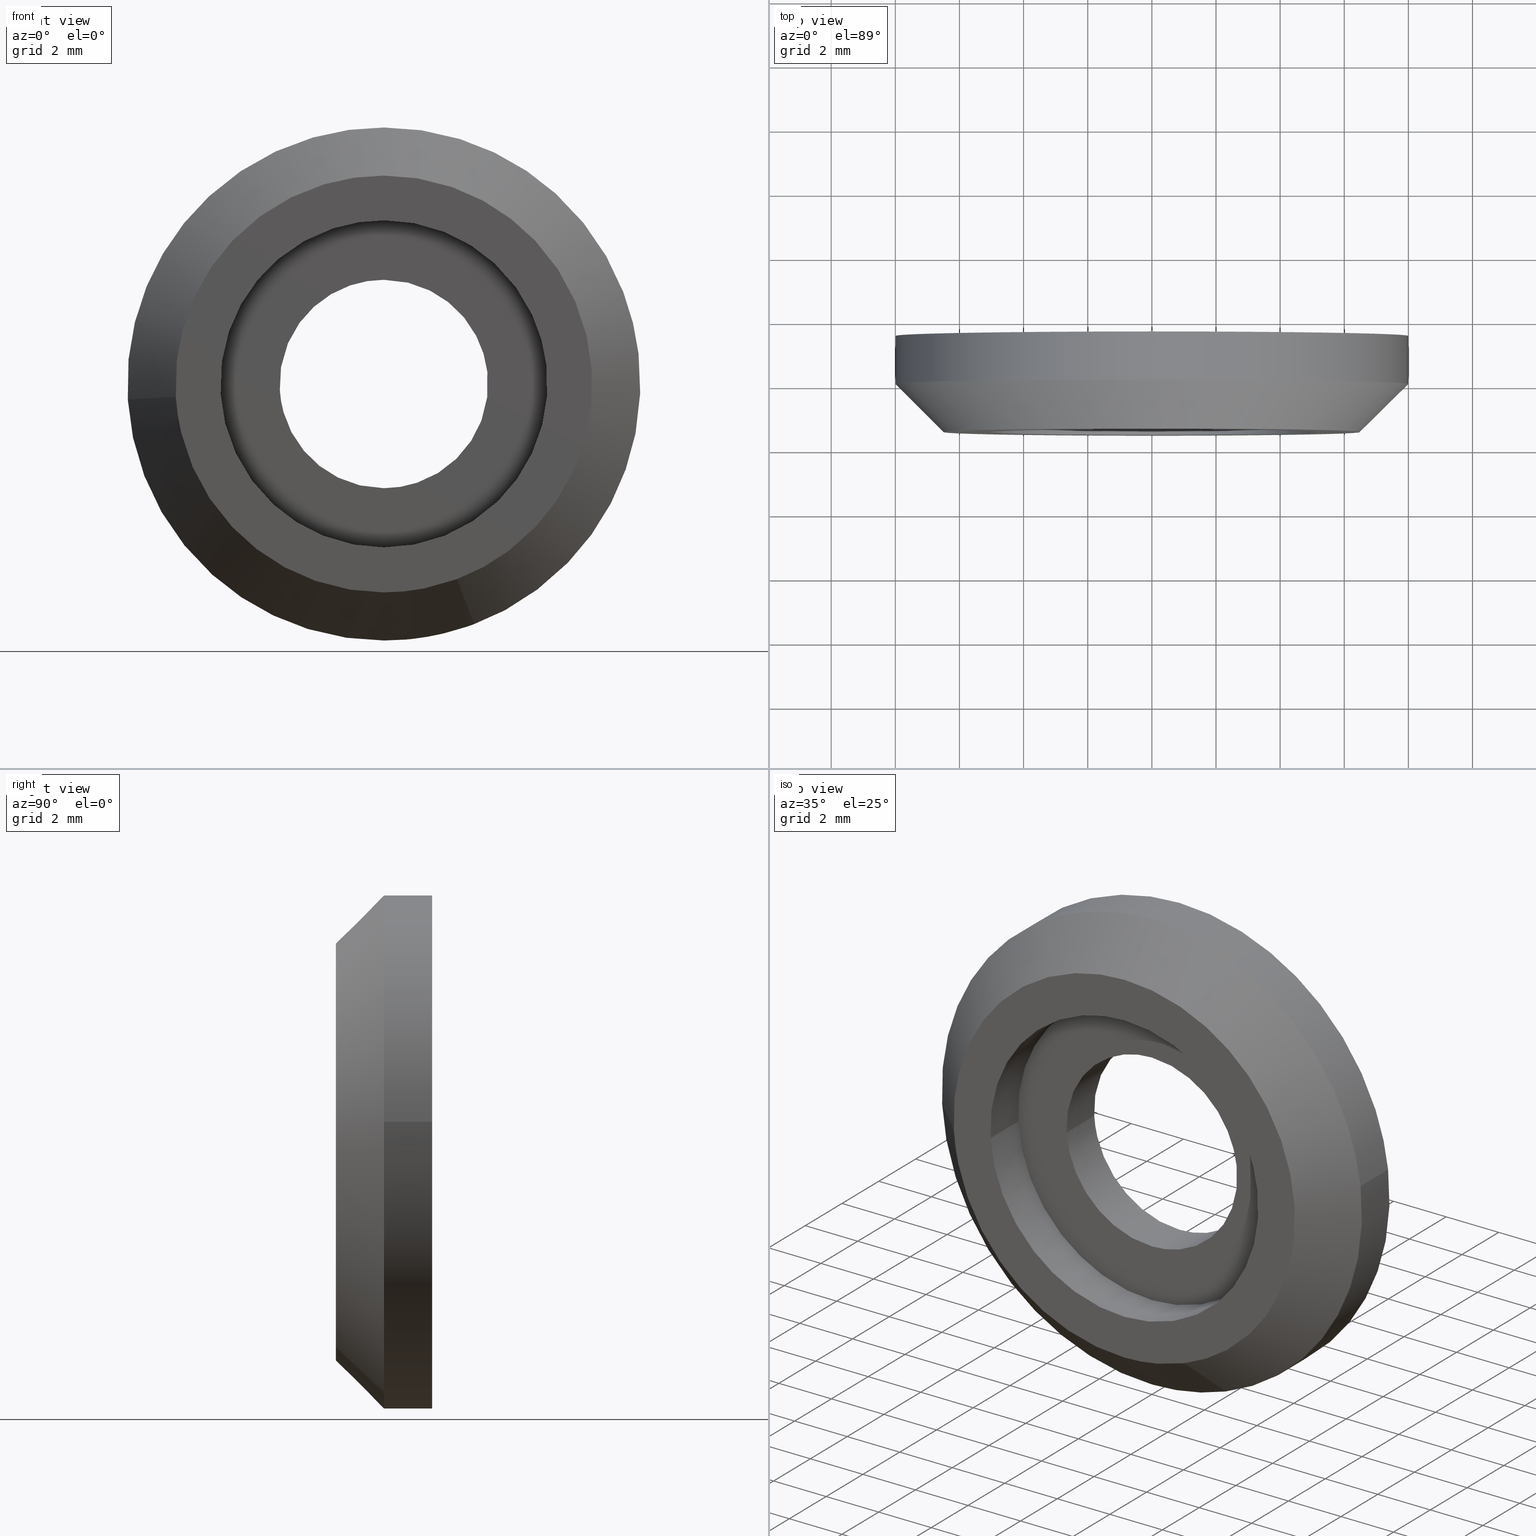
[diagram: canonical four-view strip — front | top / right | iso, engineering-drawing reading convention]
A machine part, canonical four-view strip (front | top / right | iso — engineering-drawing reading convention). The complete STEP part file that produces these views, byte-faithful:
ISO-10303-21;
HEADER;
/****************************************************************
 * Generated by software with PDE/Lib inside                    *
 * PDElib Version 4.4.1-0003, patched  Thursday August 19 11:58 *
 * International Technegroup Inc. (www.iti-oh.com)              *
 ****************************************************************/
FILE_DESCRIPTION((''),'2;1');
FILE_NAME('','2005-10-12T14:41:55',(''),(''),'','CADfix','');
FILE_SCHEMA(('AUTOMOTIVE_DESIGN'));
ENDSEC;
DATA;
#5=APPLICATION_CONTEXT('automotive design');
#6=APPLICATION_PROTOCOL_DEFINITION('Draft International Standard','automotive_design',1998,#5);
#7=PRODUCT_CONTEXT('None',#5,'mechanical');
#8=PRODUCT('facing ring','','None',(#7));
#9=PRODUCT_RELATED_PRODUCT_CATEGORY('part','description',(#8));
#10=PRODUCT_DEFINITION_FORMATION('None','None',#8);
#11=PRODUCT_DEFINITION_CONTEXT('part definition',#5,'design');
#12=PRODUCT_DEFINITION('None','None',#10,#11);
#18=(NAMED_UNIT(*)PLANE_ANGLE_UNIT()SI_UNIT($,.RADIAN.));
#19=DIMENSIONAL_EXPONENTS(0.0,0.0,0.0,0.0,0.0,0.0,0.0);
#20=PLANE_ANGLE_MEASURE_WITH_UNIT(PLANE_ANGLE_MEASURE(0.017453292500000),#18);
#24=(CONVERSION_BASED_UNIT('DEGREE',#20)NAMED_UNIT(#19)PLANE_ANGLE_UNIT());
#28=(NAMED_UNIT(*)SI_UNIT($,.STERADIAN.)SOLID_ANGLE_UNIT());
#32=(LENGTH_UNIT()NAMED_UNIT(*)SI_UNIT(.MILLI.,.METRE.));
#34=UNCERTAINTY_MEASURE_WITH_UNIT(LENGTH_MEASURE(0.001000000000000),#32,'DISTANCE_ACCURACY_VALUE','');
#36=(GEOMETRIC_REPRESENTATION_CONTEXT(3)GLOBAL_UNCERTAINTY_ASSIGNED_CONTEXT((#34))GLOBAL_UNIT_ASSIGNED_CONTEXT((#24,#28,#32))REPRESENTATION_CONTEXT('None','None'));
#37=AXIS2_PLACEMENT_3D('',#38,#39,#40);
#38=CARTESIAN_POINT('',(0.0,0.0,0.0));
#39=DIRECTION('',(0.0,0.0,1.0));
#40=DIRECTION('',(1.0,0.0,0.0));
#41=ADVANCED_BREP_SHAPE_REPRESENTATION('',(#37,#799),#36);
#42=PRODUCT_DEFINITION_SHAPE('','',#12);
#43=SHAPE_DEFINITION_REPRESENTATION(#42,#41);
#44=CARTESIAN_POINT('',(2.272331159505534,-1.537500000000001,-6.049827877844145));
#45=CARTESIAN_POINT('',(1.363519331710825,-1.537500000000001,-6.391179975147284));
#46=CARTESIAN_POINT('',(0.394526186744013,-1.537500000000000,-6.450446134801312));
#47=CARTESIAN_POINT('',(-6.055919948057299,-1.537500000000000,-6.844972321545325));
#48=CARTESIAN_POINT('',(-6.450446134801312,-1.537500000000000,-0.394526186744013));
#49=CARTESIAN_POINT('',(2.826459111023253,0.038437500000000,-7.525131649022485));
#50=CARTESIAN_POINT('',(1.696025520773577,0.038437500000000,-7.949725459415552));
#51=CARTESIAN_POINT('',(0.490734869517227,0.038437500000000,-8.023444193689274));
#52=CARTESIAN_POINT('',(-7.532709324172047,0.038437500000000,-8.514179063206502));
#53=CARTESIAN_POINT('',(-8.023444193689274,0.038437500000000,-0.490734869517227));
#61=(BOUNDED_SURFACE()B_SPLINE_SURFACE(2,1,((#44,#49),(#45,#50),(#46,#51),(#47,#52),(#48,#53)),.UNSPECIFIED.,.F.,.F.,.U.)B_SPLINE_SURFACE_WITH_KNOTS((3,2,3),(2,2),(0.0,2.663703866230780,15.982223197384680),(0.0,2.228712185952351),.UNSPECIFIED.)GEOMETRIC_REPRESENTATION_ITEM()RATIONAL_B_SPLINE_SURFACE(((0.906274169979695,0.906274169979695),(0.941421356237309,0.941421356237309),(1.0,1.0),(0.707106781186548,0.707106781186548),(1.0,1.0)))REPRESENTATION_ITEM('')SURFACE());
#62=CARTESIAN_POINT('',(2.812943795141329,8.550710E-013,-7.489148630210885));
#63=VERTEX_POINT('',#62);
#64=CARTESIAN_POINT('',(0.0,0.0,-8.0));
#65=VERTEX_POINT('',#64);
#66=CARTESIAN_POINT('',(2.812943795141329,8.550710E-013,-7.489148630210886));
#67=CARTESIAN_POINT('',(1.452859088543410,0.0,-8.0));
#68=CARTESIAN_POINT('',(0.0,0.0,-8.0));
#76=(BOUNDED_CURVE()B_SPLINE_CURVE(2,(#66,#67,#68),.UNSPECIFIED.,.F.,.U.)B_SPLINE_CURVE_WITH_KNOTS((3,3),(0.440284170898553,0.500000000000000),.UNSPECIFIED.)CURVE()GEOMETRIC_REPRESENTATION_ITEM()RATIONAL_B_SPLINE_CURVE((0.893499554635329,0.930038554401453,1.0))REPRESENTATION_ITEM(''));
#77=EDGE_CURVE('',#63,#65,#76,.T.);
#78=ORIENTED_EDGE('',*,*,#77,.F.);
#79=CARTESIAN_POINT('',(2.285516833554305,-1.499999999999113,-6.084933262045807));
#80=VERTEX_POINT('',#79);
#81=CARTESIAN_POINT('',(2.285516833554305,-1.499999999999113,-6.084933262045807));
#82=CARTESIAN_POINT('',(2.812943795141329,8.550710E-013,-7.489148630210885));
#83=QUASI_UNIFORM_CURVE('',1,(#81,#82),.UNSPECIFIED.,.F.,.U.);
#84=EDGE_CURVE('',#80,#63,#83,.T.);
#85=ORIENTED_EDGE('',*,*,#84,.F.);
#86=CARTESIAN_POINT('',(0.0,-1.500000000000000,-6.500000000000000));
#87=VERTEX_POINT('',#86);
#88=CARTESIAN_POINT('',(2.285516833554305,-1.499999999999113,-6.084933262045807));
#89=CARTESIAN_POINT('',(1.180448009443627,-1.500000000000000,-6.500000000000000));
#90=CARTESIAN_POINT('',(0.0,-1.500000000000000,-6.500000000000000));
#98=(BOUNDED_CURVE()B_SPLINE_CURVE(2,(#88,#89,#90),.UNSPECIFIED.,.F.,.U.)B_SPLINE_CURVE_WITH_KNOTS((3,3),(0.440284170898454,0.500000000000000),.UNSPECIFIED.)CURVE()GEOMETRIC_REPRESENTATION_ITEM()RATIONAL_B_SPLINE_CURVE((0.893499554635208,0.930038554401337,1.0))REPRESENTATION_ITEM(''));
#99=EDGE_CURVE('',#80,#87,#98,.T.);
#100=ORIENTED_EDGE('',*,*,#99,.T.);
#101=CARTESIAN_POINT('',(-6.487876189742202,-1.499999999999874,-0.396815506977523));
#102=VERTEX_POINT('',#101);
#103=CARTESIAN_POINT('',(0.0,-1.500000000000000,-6.500000000000000));
#104=CARTESIAN_POINT('',(-6.114589434885240,-1.500000000000001,-6.500000000000001));
#105=CARTESIAN_POINT('',(-6.487876189742202,-1.499999999999874,-0.396815506977523));
#113=(BOUNDED_CURVE()B_SPLINE_CURVE(2,(#103,#104,#105),.UNSPECIFIED.,.F.,.U.)B_SPLINE_CURVE_WITH_KNOTS((3,3),(0.500000000000000,0.739332962241918),.UNSPECIFIED.)CURVE()GEOMETRIC_REPRESENTATION_ITEM()RATIONAL_B_SPLINE_CURVE((1.0,0.719603993283224,0.976072041673094))REPRESENTATION_ITEM(''));
#114=EDGE_CURVE('',#87,#102,#113,.T.);
#115=ORIENTED_EDGE('',*,*,#114,.T.);
#116=CARTESIAN_POINT('',(-7.985078472751683,-1.985229E-009,-0.488386887853882));
#117=VERTEX_POINT('',#116);
#118=CARTESIAN_POINT('',(-6.487876189742202,-1.499999999999874,-0.396815506977523));
#119=CARTESIAN_POINT('',(-7.985078472751683,-1.985229E-009,-0.488386887853882));
#120=QUASI_UNIFORM_CURVE('',1,(#118,#119),.UNSPECIFIED.,.F.,.U.);
#121=EDGE_CURVE('',#102,#117,#120,.T.);
#122=ORIENTED_EDGE('',*,*,#121,.T.);
#123=CARTESIAN_POINT('',(0.0,0.0,-8.0));
#124=CARTESIAN_POINT('',(-7.525649883885951,0.0,-8.0));
#125=CARTESIAN_POINT('',(-7.985078472751683,-1.985229E-009,-0.488386887853882));
#133=(BOUNDED_CURVE()B_SPLINE_CURVE(2,(#123,#124,#125),.UNSPECIFIED.,.F.,.U.)B_SPLINE_CURVE_WITH_KNOTS((3,3),(0.500000000000000,0.739332993105690),.UNSPECIFIED.)CURVE()GEOMETRIC_REPRESENTATION_ITEM()RATIONAL_B_SPLINE_CURVE((1.0,0.719603957124067,0.976072107820041))REPRESENTATION_ITEM(''));
#134=EDGE_CURVE('',#65,#117,#133,.T.);
#135=ORIENTED_EDGE('',*,*,#134,.F.);
#136=EDGE_LOOP('',(#78,#85,#100,#115,#122,#135));
#137=FACE_OUTER_BOUND('',#136,.T.);
#138=ADVANCED_FACE('',(#137),#61,.T.);
#139=CARTESIAN_POINT('',(-6.450446134801312,-1.537500000000000,-0.394526186744013));
#140=CARTESIAN_POINT('',(-6.844972321545325,-1.537500000000000,6.055919948057299));
#141=CARTESIAN_POINT('',(-0.394526186744013,-1.537500000000000,6.450446134801312));
#142=CARTESIAN_POINT('',(6.055919948057299,-1.537500000000000,6.844972321545325));
#143=CARTESIAN_POINT('',(6.450446134801312,-1.537500000000000,0.394526186744013));
#144=CARTESIAN_POINT('',(6.741920552793120,-1.537500000000001,-4.371038422402307));
#145=CARTESIAN_POINT('',(2.272331159505534,-1.537500000000001,-6.049827877844145));
#146=CARTESIAN_POINT('',(-8.023444193689274,0.038437500000000,-0.490734869517227));
#147=CARTESIAN_POINT('',(-8.514179063206502,0.038437500000000,7.532709324172047));
#148=CARTESIAN_POINT('',(-0.490734869517227,0.038437500000000,8.023444193689274));
#149=CARTESIAN_POINT('',(7.532709324172047,0.038437500000000,8.514179063206502));
#150=CARTESIAN_POINT('',(8.023444193689274,0.038437500000000,0.490734869517227));
#151=CARTESIAN_POINT('',(8.385997213708775,0.038437500000000,-5.436954610225077));
#152=CARTESIAN_POINT('',(2.826459111023253,0.038437500000000,-7.525131649022485));
#160=(BOUNDED_SURFACE()B_SPLINE_SURFACE(2,1,((#139,#146),(#140,#147),(#141,#148),(#142,#149),(#143,#150),(#144,#151),(#145,#152)),.UNSPECIFIED.,.F.,.F.,.U.)B_SPLINE_SURFACE_WITH_KNOTS((3,2,2,3),(2,2),(0.0,13.318519331153899,26.637038662307809,37.291854127230927),(0.0,2.228712185952351),.UNSPECIFIED.)GEOMETRIC_REPRESENTATION_ITEM()RATIONAL_B_SPLINE_SURFACE(((1.0,1.0),(0.707106781186548,0.707106781186548),(1.0,1.0),(0.707106781186548,0.707106781186548),(1.0,1.0),(0.765685424949238,0.765685424949238),(0.906274169979695,0.906274169979695)))REPRESENTATION_ITEM('')SURFACE());
#161=CARTESIAN_POINT('',(7.944076812039399,4.167216E-014,0.944268819982941));
#162=VERTEX_POINT('',#161);
#163=CARTESIAN_POINT('',(7.944076812039400,4.167216E-014,0.944268819982941));
#164=CARTESIAN_POINT('',(8.0,0.0,0.473790401847546));
#165=CARTESIAN_POINT('',(8.0,0.0,0.0));
#166=CARTESIAN_POINT('',(8.0,0.0,-5.540876765541983));
#167=CARTESIAN_POINT('',(2.812943795141329,8.550710E-013,-7.489148630210885));
#175=(BOUNDED_CURVE()B_SPLINE_CURVE(2,(#163,#164,#165,#166,#167),.UNSPECIFIED.,.F.,.U.)B_SPLINE_CURVE_WITH_KNOTS((3,2,3),(0.229562581104653,0.250000000000000,0.440284170898552),.UNSPECIFIED.)CURVE()GEOMETRIC_REPRESENTATION_ITEM()RATIONAL_B_SPLINE_CURVE((0.956026965066855,0.976056074382012,1.0,0.777068226785096,0.893499554635329))REPRESENTATION_ITEM(''));
#176=EDGE_CURVE('',#162,#63,#175,.T.);
#177=ORIENTED_EDGE('',*,*,#176,.F.);
#178=CARTESIAN_POINT('',(0.0,0.0,8.0));
#179=VERTEX_POINT('',#178);
#180=CARTESIAN_POINT('',(0.0,0.0,8.0));
#181=CARTESIAN_POINT('',(7.105400762814723,0.0,8.000000000000002));
#182=CARTESIAN_POINT('',(7.944076812039400,4.167216E-014,0.944268819982941));
#190=(BOUNDED_CURVE()B_SPLINE_CURVE(2,(#180,#181,#182),.UNSPECIFIED.,.F.,.U.)B_SPLINE_CURVE_WITH_KNOTS((3,3),(0.0,0.229562581104653),.UNSPECIFIED.)CURVE()GEOMETRIC_REPRESENTATION_ITEM()RATIONAL_B_SPLINE_CURVE((1.0,0.731050706804535,0.956026965066855))REPRESENTATION_ITEM(''));
#191=EDGE_CURVE('',#179,#162,#190,.T.);
#192=ORIENTED_EDGE('',*,*,#191,.F.);
#193=CARTESIAN_POINT('',(-7.985078472751683,-1.985229E-009,-0.488386887853882));
#194=CARTESIAN_POINT('',(-8.000000000000002,0.0,-0.244421390234428));
#195=CARTESIAN_POINT('',(-8.0,0.0,0.0));
#196=CARTESIAN_POINT('',(-8.0,0.0,8.0));
#197=CARTESIAN_POINT('',(0.0,0.0,8.0));
#205=(BOUNDED_CURVE()B_SPLINE_CURVE(2,(#193,#194,#195,#196,#197),.UNSPECIFIED.,.F.,.U.)B_SPLINE_CURVE_WITH_KNOTS((3,2,3),(0.739332993105690,0.750000000000000,1.0),.UNSPECIFIED.)CURVE()GEOMETRIC_REPRESENTATION_ITEM()RATIONAL_B_SPLINE_CURVE((0.976072107820041,0.987502824062481,1.0,0.707106781186548,1.0))REPRESENTATION_ITEM(''));
#206=EDGE_CURVE('',#117,#179,#205,.T.);
#207=ORIENTED_EDGE('',*,*,#206,.F.);
#208=ORIENTED_EDGE('',*,*,#121,.F.);
#209=CARTESIAN_POINT('',(0.0,-1.500000000000000,6.500000000000000));
#210=VERTEX_POINT('',#209);
#211=CARTESIAN_POINT('',(-6.487876189742202,-1.499999999999874,-0.396815506977523));
#212=CARTESIAN_POINT('',(-6.500000000000001,-1.500000000000001,-0.198592961441776));
#213=CARTESIAN_POINT('',(-6.500000000000000,-1.500000000000000,0.0));
#214=CARTESIAN_POINT('',(-6.500000000000000,-1.500000000000000,6.500000000000000));
#215=CARTESIAN_POINT('',(0.0,-1.500000000000000,6.500000000000000));
#223=(BOUNDED_CURVE()B_SPLINE_CURVE(2,(#211,#212,#213,#214,#215),.UNSPECIFIED.,.F.,.U.)B_SPLINE_CURVE_WITH_KNOTS((3,2,3),(0.739332962241918,0.750000000000000,1.0),.UNSPECIFIED.)CURVE()GEOMETRIC_REPRESENTATION_ITEM()RATIONAL_B_SPLINE_CURVE((0.976072041673094,0.987502787903323,1.0,0.707106781186547,1.0))REPRESENTATION_ITEM(''));
#224=EDGE_CURVE('',#102,#210,#223,.T.);
#225=ORIENTED_EDGE('',*,*,#224,.T.);
#226=CARTESIAN_POINT('',(0.0,-1.500000000000000,6.500000000000000));
#227=CARTESIAN_POINT('',(6.500000000000000,-1.500000000000000,6.500000000000000));
#228=CARTESIAN_POINT('',(6.500000000000000,-1.500000000000000,0.0));
#229=CARTESIAN_POINT('',(6.500000000000000,-1.499999999999999,-4.501962371999858));
#230=CARTESIAN_POINT('',(2.285516833554305,-1.499999999999113,-6.084933262045807));
#238=(BOUNDED_CURVE()B_SPLINE_CURVE(2,(#226,#227,#228,#229,#230),.UNSPECIFIED.,.F.,.U.)B_SPLINE_CURVE_WITH_KNOTS((3,2,3),(0.0,0.250000000000000,0.440284170898454),.UNSPECIFIED.)CURVE()GEOMETRIC_REPRESENTATION_ITEM()RATIONAL_B_SPLINE_CURVE((1.0,0.707106781186547,1.0,0.777068226785211,0.893499554635208))REPRESENTATION_ITEM(''));
#239=EDGE_CURVE('',#210,#80,#238,.T.);
#240=ORIENTED_EDGE('',*,*,#239,.T.);
#241=ORIENTED_EDGE('',*,*,#84,.T.);
#242=EDGE_LOOP('',(#177,#192,#207,#208,#225,#240,#241));
#243=FACE_OUTER_BOUND('',#242,.T.);
#244=ADVANCED_FACE('',(#243),#160,.T.);
#245=CARTESIAN_POINT('',(7.944076210909330,-0.037500000000000,0.944273877254068));
#246=CARTESIAN_POINT('',(7.971100923588844,-0.037500000000000,0.716917829103821));
#247=CARTESIAN_POINT('',(7.985078387374934,-0.037500000000000,0.488388316278856));
#248=CARTESIAN_POINT('',(8.473466703653790,-0.037500000000000,-7.496690071096078));
#249=CARTESIAN_POINT('',(0.488388316278856,-0.037500000000000,-7.985078387374934));
#250=CARTESIAN_POINT('',(-7.496690071096078,-0.037500000000000,-8.473466703653790));
#251=CARTESIAN_POINT('',(-7.985078387374934,-0.037500000000000,-0.488388316278856));
#252=CARTESIAN_POINT('',(7.944076210909330,1.538437500000000,0.944273877254068));
#253=CARTESIAN_POINT('',(7.971100923588844,1.538437500000001,0.716917829103821));
#254=CARTESIAN_POINT('',(7.985078387374934,1.538437500000000,0.488388316278856));
#255=CARTESIAN_POINT('',(8.473466703653790,1.538437500000001,-7.496690071096078));
#256=CARTESIAN_POINT('',(0.488388316278856,1.538437500000000,-7.985078387374934));
#257=CARTESIAN_POINT('',(-7.496690071096078,1.538437500000001,-8.473466703653790));
#258=CARTESIAN_POINT('',(-7.985078387374934,1.538437500000000,-0.488388316278856));
#266=(BOUNDED_SURFACE()B_SPLINE_SURFACE(2,1,((#245,#252),(#246,#253),(#247,#254),(#248,#255),(#249,#256),(#250,#257),(#251,#258)),.UNSPECIFIED.,.F.,.F.,.U.)B_SPLINE_SURFACE_WITH_KNOTS((3,2,2,3),(2,2),(0.0,0.530193359837562,13.785027355776601,27.039861351715629),(0.0,1.0),.UNSPECIFIED.)GEOMETRIC_REPRESENTATION_ITEM()RATIONAL_B_SPLINE_SURFACE(((0.977505800795127,0.977505800795127),(0.988284271247462,0.988284271247462),(1.0,1.0),(0.707106781186548,0.707106781186548),(1.0,1.0),(0.707106781186548,0.707106781186548),(1.0,1.0)))REPRESENTATION_ITEM('')SURFACE());
#267=ORIENTED_EDGE('',*,*,#176,.T.);
#268=ORIENTED_EDGE('',*,*,#77,.T.);
#269=ORIENTED_EDGE('',*,*,#134,.T.);
#270=CARTESIAN_POINT('',(-7.985078559988073,1.500000000000000,-0.488385494062622));
#271=VERTEX_POINT('',#270);
#272=CARTESIAN_POINT('',(-7.985078472751683,-1.985229E-009,-0.488386887853882));
#273=CARTESIAN_POINT('',(-7.985078559988073,1.500000000000000,-0.488385494062622));
#274=QUASI_UNIFORM_CURVE('',1,(#272,#273),.UNSPECIFIED.,.F.,.U.);
#275=EDGE_CURVE('',#117,#271,#274,.T.);
#276=ORIENTED_EDGE('',*,*,#275,.T.);
#277=CARTESIAN_POINT('',(0.0,1.500000000000000,-8.0));
#278=VERTEX_POINT('',#277);
#279=CARTESIAN_POINT('',(0.0,1.500000000000000,-8.0));
#280=CARTESIAN_POINT('',(-7.525651200053410,1.500000000000001,-8.0));
#281=CARTESIAN_POINT('',(-7.985078559988073,1.500000000000000,-0.488385494062622));
#289=(BOUNDED_CURVE()B_SPLINE_CURVE(2,(#279,#280,#281),.UNSPECIFIED.,.F.,.U.)B_SPLINE_CURVE_WITH_KNOTS((3,3),(0.500000000000000,0.739333023226263),.UNSPECIFIED.)CURVE()GEOMETRIC_REPRESENTATION_ITEM()RATIONAL_B_SPLINE_CURVE((1.0,0.719603921835620,0.976072172374189))REPRESENTATION_ITEM(''));
#290=EDGE_CURVE('',#278,#271,#289,.T.);
#291=ORIENTED_EDGE('',*,*,#290,.F.);
#292=CARTESIAN_POINT('',(7.944076804799064,1.500000000000000,0.944268880895772));
#293=VERTEX_POINT('',#292);
#294=CARTESIAN_POINT('',(7.944076804799064,1.500000000000000,0.944268880895772));
#295=CARTESIAN_POINT('',(8.0,1.500000000000000,0.473790432625938));
#296=CARTESIAN_POINT('',(8.0,1.500000000000000,0.0));
#297=CARTESIAN_POINT('',(8.0,1.500000000000000,-8.0));
#298=CARTESIAN_POINT('',(0.0,1.500000000000000,-8.0));
#306=(BOUNDED_CURVE()B_SPLINE_CURVE(2,(#294,#295,#296,#297,#298),.UNSPECIFIED.,.F.,.U.)B_SPLINE_CURVE_WITH_KNOTS((3,2,3),(0.229562579808786,0.250000000000000,0.500000000000000),.UNSPECIFIED.)CURVE()GEOMETRIC_REPRESENTATION_ITEM()RATIONAL_B_SPLINE_CURVE((0.956026962526900,0.976056072863809,1.0,0.707106781186548,1.0))REPRESENTATION_ITEM(''));
#307=EDGE_CURVE('',#293,#278,#306,.T.);
#308=ORIENTED_EDGE('',*,*,#307,.F.);
#309=CARTESIAN_POINT('',(7.944076812039399,4.167216E-014,0.944268819982941));
#310=CARTESIAN_POINT('',(7.944076804799064,1.500000000000000,0.944268880895772));
#311=QUASI_UNIFORM_CURVE('',1,(#309,#310),.UNSPECIFIED.,.F.,.U.);
#312=EDGE_CURVE('',#162,#293,#311,.T.);
#313=ORIENTED_EDGE('',*,*,#312,.F.);
#314=EDGE_LOOP('',(#267,#268,#269,#276,#291,#308,#313));
#315=FACE_OUTER_BOUND('',#314,.T.);
#316=ADVANCED_FACE('',(#315),#266,.T.);
#317=CARTESIAN_POINT('',(-7.985078387374934,-0.037500000000000,-0.488388316278856));
#318=CARTESIAN_POINT('',(-8.473466703653790,-0.037500000000000,7.496690071096078));
#319=CARTESIAN_POINT('',(-0.488388316278856,-0.037500000000000,7.985078387374934));
#320=CARTESIAN_POINT('',(7.052347926716008,-0.037500000000000,8.446289573860220));
#321=CARTESIAN_POINT('',(7.944076210909330,-0.037500000000000,0.944273877254068));
#322=CARTESIAN_POINT('',(-7.985078387374934,1.538437500000000,-0.488388316278856));
#323=CARTESIAN_POINT('',(-8.473466703653790,1.538437500000001,7.496690071096078));
#324=CARTESIAN_POINT('',(-0.488388316278856,1.538437500000000,7.985078387374934));
#325=CARTESIAN_POINT('',(7.052347926716008,1.538437500000000,8.446289573860220));
#326=CARTESIAN_POINT('',(7.944076210909330,1.538437500000000,0.944273877254068));
#334=(BOUNDED_SURFACE()B_SPLINE_SURFACE(2,1,((#317,#322),(#318,#323),(#319,#324),(#320,#325),(#321,#326)),.UNSPECIFIED.,.F.,.F.,.U.)B_SPLINE_SURFACE_WITH_KNOTS((3,2,3),(2,2),(0.0,13.254833995939039,25.979474632040510),(0.0,1.0),.UNSPECIFIED.)GEOMETRIC_REPRESENTATION_ITEM()RATIONAL_B_SPLINE_SURFACE(((1.0,1.0),(0.707106781186548,0.707106781186548),(1.0,1.0),(0.718822509939086,0.718822509939086),(0.977505800795127,0.977505800795127)))REPRESENTATION_ITEM('')SURFACE());
#335=ORIENTED_EDGE('',*,*,#191,.T.);
#336=ORIENTED_EDGE('',*,*,#312,.T.);
#337=CARTESIAN_POINT('',(0.0,1.500000000000000,8.0));
#338=VERTEX_POINT('',#337);
#339=CARTESIAN_POINT('',(0.0,1.500000000000000,8.0));
#340=CARTESIAN_POINT('',(7.105400707949082,1.500000000000000,8.0));
#341=CARTESIAN_POINT('',(7.944076804799064,1.500000000000000,0.944268880895772));
#349=(BOUNDED_CURVE()B_SPLINE_CURVE(2,(#339,#340,#341),.UNSPECIFIED.,.F.,.U.)B_SPLINE_CURVE_WITH_KNOTS((3,3),(0.0,0.229562579808786),.UNSPECIFIED.)CURVE()GEOMETRIC_REPRESENTATION_ITEM()RATIONAL_B_SPLINE_CURVE((1.0,0.731050708322738,0.956026962526900))REPRESENTATION_ITEM(''));
#350=EDGE_CURVE('',#338,#293,#349,.T.);
#351=ORIENTED_EDGE('',*,*,#350,.F.);
#352=CARTESIAN_POINT('',(-7.985078559988073,1.500000000000000,-0.488385494062622));
#353=CARTESIAN_POINT('',(-8.0,1.500000000000000,-0.244420691324024));
#354=CARTESIAN_POINT('',(-8.0,1.500000000000000,0.0));
#355=CARTESIAN_POINT('',(-8.0,1.500000000000000,8.0));
#356=CARTESIAN_POINT('',(0.0,1.500000000000000,8.0));
#364=(BOUNDED_CURVE()B_SPLINE_CURVE(2,(#352,#353,#354,#355,#356),.UNSPECIFIED.,.F.,.U.)B_SPLINE_CURVE_WITH_KNOTS((3,2,3),(0.739333023226263,0.750000000000000,1.0),.UNSPECIFIED.)CURVE()GEOMETRIC_REPRESENTATION_ITEM()RATIONAL_B_SPLINE_CURVE((0.976072172374189,0.987502859350927,1.0,0.707106781186548,1.0))REPRESENTATION_ITEM(''));
#365=EDGE_CURVE('',#271,#338,#364,.T.);
#366=ORIENTED_EDGE('',*,*,#365,.F.);
#367=ORIENTED_EDGE('',*,*,#275,.F.);
#368=ORIENTED_EDGE('',*,*,#206,.T.);
#369=EDGE_LOOP('',(#335,#336,#351,#366,#367,#368));
#370=FACE_OUTER_BOUND('',#369,.T.);
#371=ADVANCED_FACE('',(#370),#334,.T.);
#372=CARTESIAN_POINT('',(3.227280960681916,-0.037500000000000,0.383611262634465));
#373=CARTESIAN_POINT('',(3.238259750207968,-0.037500000000000,0.291247868073427));
#374=CARTESIAN_POINT('',(3.243938094871067,-0.037500000000000,0.198407753488285));
#375=CARTESIAN_POINT('',(3.442345848359353,-0.037500000000000,-3.045530341382781));
#376=CARTESIAN_POINT('',(0.198407753488285,-0.037500000000000,-3.243938094871067));
#377=CARTESIAN_POINT('',(-3.045530341382781,-0.037500000000000,-3.442345848359353));
#378=CARTESIAN_POINT('',(-3.243938094871067,-0.037500000000000,-0.198407753488285));
#379=CARTESIAN_POINT('',(3.227280960681916,1.538437500000000,0.383611262634465));
#380=CARTESIAN_POINT('',(3.238259750207968,1.538437500000001,0.291247868073427));
#381=CARTESIAN_POINT('',(3.243938094871067,1.538437500000000,0.198407753488285));
#382=CARTESIAN_POINT('',(3.442345848359353,1.538437500000001,-3.045530341382781));
#383=CARTESIAN_POINT('',(0.198407753488285,1.538437500000000,-3.243938094871067));
#384=CARTESIAN_POINT('',(-3.045530341382781,1.538437500000001,-3.442345848359353));
#385=CARTESIAN_POINT('',(-3.243938094871067,1.538437500000000,-0.198407753488285));
#393=(BOUNDED_SURFACE()B_SPLINE_SURFACE(2,1,((#372,#379),(#373,#380),(#374,#381),(#375,#382),(#376,#383),(#377,#384),(#378,#385)),.UNSPECIFIED.,.F.,.F.,.U.)B_SPLINE_SURFACE_WITH_KNOTS((3,2,2,3),(2,2),(0.0,0.215391052434010,5.600167363284244,10.984943674134479),(0.0,1.0),.UNSPECIFIED.)GEOMETRIC_REPRESENTATION_ITEM()RATIONAL_B_SPLINE_SURFACE(((0.977505800795127,0.977505800795127),(0.988284271247462,0.988284271247462),(1.0,1.0),(0.707106781186548,0.707106781186548),(1.0,1.0),(0.707106781186548,0.707106781186548),(1.0,1.0)))REPRESENTATION_ITEM('')SURFACE());
#394=CARTESIAN_POINT('',(3.227281486811727,1.500000000000071,0.383606836308235));
#395=VERTEX_POINT('',#394);
#396=CARTESIAN_POINT('',(0.0,1.500000000000000,-3.250000000000000));
#397=VERTEX_POINT('',#396);
#398=CARTESIAN_POINT('',(3.227281486811727,1.500000000000071,0.383606836308235));
#399=CARTESIAN_POINT('',(3.250000000000000,1.500000000000000,0.192476152308770));
#400=CARTESIAN_POINT('',(3.250000000000000,1.500000000000000,0.0));
#401=CARTESIAN_POINT('',(3.250000000000000,1.500000000000000,-3.250000000000000));
#402=CARTESIAN_POINT('',(0.0,1.500000000000000,-3.250000000000000));
#410=(BOUNDED_CURVE()B_SPLINE_CURVE(2,(#398,#399,#400,#401,#402),.UNSPECIFIED.,.F.,.U.)B_SPLINE_CURVE_WITH_KNOTS((3,2,3),(0.229562705309400,0.250000000000000,0.500000000000000),.UNSPECIFIED.)CURVE()GEOMETRIC_REPRESENTATION_ITEM()RATIONAL_B_SPLINE_CURVE((0.956027208513637,0.976056219896924,1.0,0.707106781186547,1.0))REPRESENTATION_ITEM(''));
#411=EDGE_CURVE('',#395,#397,#410,.T.);
#412=ORIENTED_EDGE('',*,*,#411,.T.);
#413=CARTESIAN_POINT('',(-3.243938286670342,1.499999999999952,-0.198404617548119));
#414=VERTEX_POINT('',#413);
#415=CARTESIAN_POINT('',(0.0,1.500000000000000,-3.250000000000000));
#416=CARTESIAN_POINT('',(-3.057297678478167,1.500000000000000,-3.250000000000000));
#417=CARTESIAN_POINT('',(-3.243938286670342,1.499999999999951,-0.198404617548119));
#425=(BOUNDED_CURVE()B_SPLINE_CURVE(2,(#415,#416,#417),.UNSPECIFIED.,.F.,.U.)B_SPLINE_CURVE_WITH_KNOTS((3,3),(0.500000000000000,0.739333129044312),.UNSPECIFIED.)CURVE()GEOMETRIC_REPRESENTATION_ITEM()RATIONAL_B_SPLINE_CURVE((1.0,0.719603797862065,0.976072399162636))REPRESENTATION_ITEM(''));
#426=EDGE_CURVE('',#397,#414,#425,.T.);
#427=ORIENTED_EDGE('',*,*,#426,.T.);
#428=CARTESIAN_POINT('',(-3.243938284306497,3.469447E-017,-0.198404656197849));
#429=VERTEX_POINT('',#428);
#430=CARTESIAN_POINT('',(-3.243938284306497,3.469447E-017,-0.198404656197849));
#431=CARTESIAN_POINT('',(-3.243938286670342,1.499999999999952,-0.198404617548119));
#432=QUASI_UNIFORM_CURVE('',1,(#430,#431),.UNSPECIFIED.,.F.,.U.);
#433=EDGE_CURVE('',#429,#414,#432,.T.);
#434=ORIENTED_EDGE('',*,*,#433,.F.);
#435=CARTESIAN_POINT('',(0.0,0.0,-3.250000000000000));
#436=VERTEX_POINT('',#435);
#437=CARTESIAN_POINT('',(0.0,0.0,-3.250000000000000));
#438=CARTESIAN_POINT('',(-3.057297641984092,0.0,-3.250000000000000));
#439=CARTESIAN_POINT('',(-3.243938284306497,3.469447E-017,-0.198404656197849));
#447=(BOUNDED_CURVE()B_SPLINE_CURVE(2,(#437,#438,#439),.UNSPECIFIED.,.F.,.U.)B_SPLINE_CURVE_WITH_KNOTS((3,3),(0.500000000000000,0.739333126988512),.UNSPECIFIED.)CURVE()GEOMETRIC_REPRESENTATION_ITEM()RATIONAL_B_SPLINE_CURVE((1.0,0.719603800270584,0.976072394756659))REPRESENTATION_ITEM(''));
#448=EDGE_CURVE('',#436,#429,#447,.T.);
#449=ORIENTED_EDGE('',*,*,#448,.F.);
#450=CARTESIAN_POINT('',(3.227281480315944,3.194357E-017,0.383606890957840));
#451=VERTEX_POINT('',#450);
#452=CARTESIAN_POINT('',(3.227281480315944,3.194357E-017,0.383606890957840));
#453=CARTESIAN_POINT('',(3.250000000000000,0.0,0.192476179922436));
#454=CARTESIAN_POINT('',(3.250000000000000,0.0,0.0));
#455=CARTESIAN_POINT('',(3.250000000000000,0.0,-3.250000000000000));
#456=CARTESIAN_POINT('',(0.0,0.0,-3.250000000000000));
#464=(BOUNDED_CURVE()B_SPLINE_CURVE(2,(#452,#453,#454,#455,#456),.UNSPECIFIED.,.F.,.U.)B_SPLINE_CURVE_WITH_KNOTS((3,2,3),(0.229562702447560,0.250000000000000,0.500000000000000),.UNSPECIFIED.)CURVE()GEOMETRIC_REPRESENTATION_ITEM()RATIONAL_B_SPLINE_CURVE((0.956027202904301,0.976056216544070,1.0,0.707106781186547,1.0))REPRESENTATION_ITEM(''));
#465=EDGE_CURVE('',#451,#436,#464,.T.);
#466=ORIENTED_EDGE('',*,*,#465,.F.);
#467=CARTESIAN_POINT('',(3.227281480315944,3.194357E-017,0.383606890957840));
#468=CARTESIAN_POINT('',(3.227281486811727,1.500000000000071,0.383606836308235));
#469=QUASI_UNIFORM_CURVE('',1,(#467,#468),.UNSPECIFIED.,.F.,.U.);
#470=EDGE_CURVE('',#451,#395,#469,.T.);
#471=ORIENTED_EDGE('',*,*,#470,.T.);
#472=EDGE_LOOP('',(#412,#427,#434,#449,#466,#471));
#473=FACE_OUTER_BOUND('',#472,.T.);
#474=ADVANCED_FACE('',(#473),#393,.F.);
#475=CARTESIAN_POINT('',(-3.243938094871067,-0.037500000000000,-0.198407753488285));
#476=CARTESIAN_POINT('',(-3.442345848359353,-0.037500000000000,3.045530341382781));
#477=CARTESIAN_POINT('',(-0.198407753488285,-0.037500000000000,3.243938094871067));
#478=CARTESIAN_POINT('',(2.865016345228379,-0.037500000000000,3.431305139380714));
#479=CARTESIAN_POINT('',(3.227280960681916,-0.037500000000000,0.383611262634465));
#480=CARTESIAN_POINT('',(-3.243938094871067,1.538437500000000,-0.198407753488285));
#481=CARTESIAN_POINT('',(-3.442345848359353,1.538437500000001,3.045530341382781));
#482=CARTESIAN_POINT('',(-0.198407753488285,1.538437500000000,3.243938094871067));
#483=CARTESIAN_POINT('',(2.865016345228379,1.538437500000000,3.431305139380714));
#484=CARTESIAN_POINT('',(3.227280960681916,1.538437500000000,0.383611262634465));
#492=(BOUNDED_SURFACE()B_SPLINE_SURFACE(2,1,((#475,#480),(#476,#481),(#477,#482),(#478,#483),(#479,#484)),.UNSPECIFIED.,.F.,.F.,.U.)B_SPLINE_SURFACE_WITH_KNOTS((3,2,3),(2,2),(0.0,5.384776310850235,10.554161569266460),(0.0,1.0),.UNSPECIFIED.)GEOMETRIC_REPRESENTATION_ITEM()RATIONAL_B_SPLINE_SURFACE(((1.0,1.0),(0.707106781186548,0.707106781186548),(1.0,1.0),(0.718822509939086,0.718822509939086),(0.977505800795127,0.977505800795127)))REPRESENTATION_ITEM('')SURFACE());
#493=CARTESIAN_POINT('',(0.0,1.500000000000000,3.250000000000000));
#494=VERTEX_POINT('',#493);
#495=CARTESIAN_POINT('',(0.0,1.500000000000000,3.250000000000000));
#496=CARTESIAN_POINT('',(2.886571196239680,1.500000000000001,3.250000000000000));
#497=CARTESIAN_POINT('',(3.227281486811727,1.500000000000071,0.383606836308235));
#505=(BOUNDED_CURVE()B_SPLINE_CURVE(2,(#495,#496,#497),.UNSPECIFIED.,.F.,.U.)B_SPLINE_CURVE_WITH_KNOTS((3,3),(0.0,0.229562705309400),.UNSPECIFIED.)CURVE()GEOMETRIC_REPRESENTATION_ITEM()RATIONAL_B_SPLINE_CURVE((1.0,0.731050561289623,0.956027208513637))REPRESENTATION_ITEM(''));
#506=EDGE_CURVE('',#494,#395,#505,.T.);
#507=ORIENTED_EDGE('',*,*,#506,.T.);
#508=ORIENTED_EDGE('',*,*,#470,.F.);
#509=CARTESIAN_POINT('',(0.0,0.0,3.250000000000000));
#510=VERTEX_POINT('',#509);
#511=CARTESIAN_POINT('',(0.0,0.0,3.250000000000000));
#512=CARTESIAN_POINT('',(2.886571147015454,0.0,3.250000000000000));
#513=CARTESIAN_POINT('',(3.227281480315944,3.194357E-017,0.383606890957840));
#521=(BOUNDED_CURVE()B_SPLINE_CURVE(2,(#511,#512,#513),.UNSPECIFIED.,.F.,.U.)B_SPLINE_CURVE_WITH_KNOTS((3,3),(0.0,0.229562702447560),.UNSPECIFIED.)CURVE()GEOMETRIC_REPRESENTATION_ITEM()RATIONAL_B_SPLINE_CURVE((1.0,0.731050564642477,0.956027202904301))REPRESENTATION_ITEM(''));
#522=EDGE_CURVE('',#510,#451,#521,.T.);
#523=ORIENTED_EDGE('',*,*,#522,.F.);
#524=CARTESIAN_POINT('',(-3.243938284306497,3.469447E-017,-0.198404656197849));
#525=CARTESIAN_POINT('',(-3.250000000000000,0.0,-0.099294927733059));
#526=CARTESIAN_POINT('',(-3.250000000000000,0.0,0.0));
#527=CARTESIAN_POINT('',(-3.250000000000000,0.0,3.250000000000000));
#528=CARTESIAN_POINT('',(0.0,0.0,3.250000000000000));
#536=(BOUNDED_CURVE()B_SPLINE_CURVE(2,(#524,#525,#526,#527,#528),.UNSPECIFIED.,.F.,.U.)B_SPLINE_CURVE_WITH_KNOTS((3,2,3),(0.739333126988512,0.750000000000000,1.0),.UNSPECIFIED.)CURVE()GEOMETRIC_REPRESENTATION_ITEM()RATIONAL_B_SPLINE_CURVE((0.976072394756659,0.987502980915963,1.0,0.707106781186547,1.0))REPRESENTATION_ITEM(''));
#537=EDGE_CURVE('',#429,#510,#536,.T.);
#538=ORIENTED_EDGE('',*,*,#537,.F.);
#539=ORIENTED_EDGE('',*,*,#433,.T.);
#540=CARTESIAN_POINT('',(-3.243938286670342,1.499999999999951,-0.198404617548119));
#541=CARTESIAN_POINT('',(-3.250000000000000,1.500000000000000,-0.099294908354011));
#542=CARTESIAN_POINT('',(-3.250000000000000,1.500000000000000,0.0));
#543=CARTESIAN_POINT('',(-3.250000000000000,1.500000000000000,3.250000000000000));
#544=CARTESIAN_POINT('',(0.0,1.500000000000000,3.250000000000000));
#552=(BOUNDED_CURVE()B_SPLINE_CURVE(2,(#540,#541,#542,#543,#544),.UNSPECIFIED.,.F.,.U.)B_SPLINE_CURVE_WITH_KNOTS((3,2,3),(0.739333129044312,0.750000000000000,1.0),.UNSPECIFIED.)CURVE()GEOMETRIC_REPRESENTATION_ITEM()RATIONAL_B_SPLINE_CURVE((0.976072399162636,0.987502983324483,1.0,0.707106781186547,1.0))REPRESENTATION_ITEM(''));
#553=EDGE_CURVE('',#414,#494,#552,.T.);
#554=ORIENTED_EDGE('',*,*,#553,.T.);
#555=EDGE_LOOP('',(#507,#508,#523,#538,#539,#554));
#556=FACE_OUTER_BOUND('',#555,.T.);
#557=ADVANCED_FACE('',(#556),#492,.F.);
#558=CARTESIAN_POINT('',(5.064348584454699,-1.537500000000001,0.601974596749468));
#559=CARTESIAN_POINT('',(5.081576838787889,-1.537500000000000,0.457035116053686));
#560=CARTESIAN_POINT('',(5.090487471951521,-1.537500000000000,0.311347551627771));
#561=CARTESIAN_POINT('',(5.401835023579292,-1.537500000000000,-4.779139920323751));
#562=CARTESIAN_POINT('',(0.311347551627771,-1.537500000000000,-5.090487471951521));
#563=CARTESIAN_POINT('',(-4.779139920323751,-1.537500000000000,-5.401835023579292));
#564=CARTESIAN_POINT('',(-5.090487471951521,-1.537500000000000,-0.311347551627771));
#565=CARTESIAN_POINT('',(5.064348584454699,0.038437500000000,0.601974596749468));
#566=CARTESIAN_POINT('',(5.081576838787889,0.038437500000000,0.457035116053686));
#567=CARTESIAN_POINT('',(5.090487471951521,0.038437500000000,0.311347551627771));
#568=CARTESIAN_POINT('',(5.401835023579292,0.038437500000000,-4.779139920323751));
#569=CARTESIAN_POINT('',(0.311347551627771,0.038437500000000,-5.090487471951521));
#570=CARTESIAN_POINT('',(-4.779139920323751,0.038437500000000,-5.401835023579292));
#571=CARTESIAN_POINT('',(-5.090487471951521,0.038437500000000,-0.311347551627771));
#579=(BOUNDED_SURFACE()B_SPLINE_SURFACE(2,1,((#558,#565),(#559,#566),(#560,#567),(#561,#568),(#562,#569),(#563,#570),(#564,#571)),.UNSPECIFIED.,.F.,.F.,.U.)B_SPLINE_SURFACE_WITH_KNOTS((3,2,2,3),(2,2),(0.0,0.337998266896446,8.787954939307584,17.237911611718719),(0.0,1.0),.UNSPECIFIED.)GEOMETRIC_REPRESENTATION_ITEM()RATIONAL_B_SPLINE_SURFACE(((0.977505800795127,0.977505800795127),(0.988284271247462,0.988284271247462),(1.0,1.0),(0.707106781186548,0.707106781186548),(1.0,1.0),(0.707106781186548,0.707106781186548),(1.0,1.0)))REPRESENTATION_ITEM('')SURFACE());
#580=CARTESIAN_POINT('',(5.064348875071119,-2.917867E-014,0.601972151814212));
#581=VERTEX_POINT('',#580);
#582=CARTESIAN_POINT('',(0.0,0.0,-5.100000000000001));
#583=VERTEX_POINT('',#582);
#584=CARTESIAN_POINT('',(5.064348875071119,-2.917867E-014,0.601972151814212));
#585=CARTESIAN_POINT('',(5.100000000000001,0.0,0.302041774833430));
#586=CARTESIAN_POINT('',(5.100000000000001,0.0,0.0));
#587=CARTESIAN_POINT('',(5.100000000000001,0.0,-5.100000000000001));
#588=CARTESIAN_POINT('',(0.0,0.0,-5.100000000000001));
#596=(BOUNDED_CURVE()B_SPLINE_CURVE(2,(#584,#585,#586,#587,#588),.UNSPECIFIED.,.F.,.U.)B_SPLINE_CURVE_WITH_KNOTS((3,2,3),(0.229562555106003,0.250000000000000,0.500000000000000),.UNSPECIFIED.)CURVE()GEOMETRIC_REPRESENTATION_ITEM()RATIONAL_B_SPLINE_CURVE((0.956026914108389,0.976056043922698,1.0,0.707106781186548,1.0))REPRESENTATION_ITEM(''));
#597=EDGE_CURVE('',#581,#583,#596,.T.);
#598=ORIENTED_EDGE('',*,*,#597,.T.);
#599=CARTESIAN_POINT('',(-5.090487553960555,9.225259E-015,-0.311346210786117));
#600=VERTEX_POINT('',#599);
#601=CARTESIAN_POINT('',(0.0,0.0,-5.100000000000001));
#602=CARTESIAN_POINT('',(-4.797602207275556,0.0,-5.100000000000001));
#603=CARTESIAN_POINT('',(-5.090487553960555,9.225259E-015,-0.311346210786117));
#611=(BOUNDED_CURVE()B_SPLINE_CURVE(2,(#601,#602,#603),.UNSPECIFIED.,.F.,.U.)B_SPLINE_CURVE_WITH_KNOTS((3,3),(0.500000000000000,0.739333007691040),.UNSPECIFIED.)CURVE()GEOMETRIC_REPRESENTATION_ITEM()RATIONAL_B_SPLINE_CURVE((1.0,0.719603940036266,0.976072139079234))REPRESENTATION_ITEM(''));
#612=EDGE_CURVE('',#583,#600,#611,.T.);
#613=ORIENTED_EDGE('',*,*,#612,.T.);
#614=CARTESIAN_POINT('',(-5.090487552947563,-1.500000000000000,-0.311346227348550));
#615=VERTEX_POINT('',#614);
#616=CARTESIAN_POINT('',(-5.090487552947563,-1.500000000000000,-0.311346227348550));
#617=CARTESIAN_POINT('',(-5.090487553960555,9.225259E-015,-0.311346210786117));
#618=QUASI_UNIFORM_CURVE('',1,(#616,#617),.UNSPECIFIED.,.F.,.U.);
#619=EDGE_CURVE('',#615,#600,#618,.T.);
#620=ORIENTED_EDGE('',*,*,#619,.F.);
#621=CARTESIAN_POINT('',(0.0,-1.500000000000000,-5.100000000000001));
#622=VERTEX_POINT('',#621);
#623=CARTESIAN_POINT('',(0.0,-1.500000000000000,-5.100000000000001));
#624=CARTESIAN_POINT('',(-4.797602191636886,-1.500000000000000,-5.100000000000001));
#625=CARTESIAN_POINT('',(-5.090487552947563,-1.500000000000000,-0.311346227348550));
#633=(BOUNDED_CURVE()B_SPLINE_CURVE(2,(#623,#624,#625),.UNSPECIFIED.,.F.,.U.)B_SPLINE_CURVE_WITH_KNOTS((3,3),(0.500000000000000,0.739333007129641),.UNSPECIFIED.)CURVE()GEOMETRIC_REPRESENTATION_ITEM()RATIONAL_B_SPLINE_CURVE((1.0,0.719603940693986,0.976072137876048))REPRESENTATION_ITEM(''));
#634=EDGE_CURVE('',#622,#615,#633,.T.);
#635=ORIENTED_EDGE('',*,*,#634,.F.);
#636=CARTESIAN_POINT('',(5.064348871488670,-1.500000000000000,0.601972181953224));
#637=VERTEX_POINT('',#636);
#638=CARTESIAN_POINT('',(5.064348871488670,-1.500000000000000,0.601972181953224));
#639=CARTESIAN_POINT('',(5.100000000000001,-1.500000000000000,0.302041790062247));
#640=CARTESIAN_POINT('',(5.100000000000001,-1.500000000000000,0.0));
#641=CARTESIAN_POINT('',(5.100000000000001,-1.500000000000000,-5.100000000000001));
#642=CARTESIAN_POINT('',(0.0,-1.500000000000000,-5.100000000000001));
#650=(BOUNDED_CURVE()B_SPLINE_CURVE(2,(#638,#639,#640,#641,#642),.UNSPECIFIED.,.F.,.U.)B_SPLINE_CURVE_WITH_KNOTS((3,2,3),(0.229562554100228,0.250000000000000,0.500000000000000),.UNSPECIFIED.)CURVE()GEOMETRIC_REPRESENTATION_ITEM()RATIONAL_B_SPLINE_CURVE((0.956026912137029,0.976056042744360,1.0,0.707106781186548,1.0))REPRESENTATION_ITEM(''));
#651=EDGE_CURVE('',#637,#622,#650,.T.);
#652=ORIENTED_EDGE('',*,*,#651,.F.);
#653=CARTESIAN_POINT('',(5.064348871488670,-1.500000000000000,0.601972181953224));
#654=CARTESIAN_POINT('',(5.064348875071119,-2.917867E-014,0.601972151814212));
#655=QUASI_UNIFORM_CURVE('',1,(#653,#654),.UNSPECIFIED.,.F.,.U.);
#656=EDGE_CURVE('',#637,#581,#655,.T.);
#657=ORIENTED_EDGE('',*,*,#656,.T.);
#658=EDGE_LOOP('',(#598,#613,#620,#635,#652,#657));
#659=FACE_OUTER_BOUND('',#658,.T.);
#660=ADVANCED_FACE('',(#659),#579,.F.);
#661=CARTESIAN_POINT('',(-5.090487471951521,-1.537500000000000,-0.311347551627771));
#662=CARTESIAN_POINT('',(-5.401835023579292,-1.537500000000000,4.779139920323751));
#663=CARTESIAN_POINT('',(-0.311347551627771,-1.537500000000000,5.090487471951521));
#664=CARTESIAN_POINT('',(4.495871803281456,-1.537500000000000,5.384509603335889));
#665=CARTESIAN_POINT('',(5.064348584454699,-1.537500000000001,0.601974596749468));
#666=CARTESIAN_POINT('',(-5.090487471951521,0.038437500000000,-0.311347551627771));
#667=CARTESIAN_POINT('',(-5.401835023579292,0.038437500000000,4.779139920323751));
#668=CARTESIAN_POINT('',(-0.311347551627771,0.038437500000000,5.090487471951521));
#669=CARTESIAN_POINT('',(4.495871803281456,0.038437500000000,5.384509603335889));
#670=CARTESIAN_POINT('',(5.064348584454699,0.038437500000000,0.601974596749468));
#678=(BOUNDED_SURFACE()B_SPLINE_SURFACE(2,1,((#661,#666),(#662,#667),(#663,#668),(#664,#669),(#665,#670)),.UNSPECIFIED.,.F.,.F.,.U.)B_SPLINE_SURFACE_WITH_KNOTS((3,2,3),(2,2),(0.0,8.449956672411139,16.561915077925828),(0.0,1.0),.UNSPECIFIED.)GEOMETRIC_REPRESENTATION_ITEM()RATIONAL_B_SPLINE_SURFACE(((1.0,1.0),(0.707106781186548,0.707106781186548),(1.0,1.0),(0.718822509939086,0.718822509939086),(0.977505800795127,0.977505800795127)))REPRESENTATION_ITEM('')SURFACE());
#679=CARTESIAN_POINT('',(0.0,0.0,5.100000000000001));
#680=VERTEX_POINT('',#679);
#681=CARTESIAN_POINT('',(0.0,0.0,5.100000000000001));
#682=CARTESIAN_POINT('',(4.529692284562907,0.0,5.100000000000001));
#683=CARTESIAN_POINT('',(5.064348875071119,-2.917867E-014,0.601972151814212));
#691=(BOUNDED_CURVE()B_SPLINE_CURVE(2,(#681,#682,#683),.UNSPECIFIED.,.F.,.U.)B_SPLINE_CURVE_WITH_KNOTS((3,3),(0.0,0.229562555106003),.UNSPECIFIED.)CURVE()GEOMETRIC_REPRESENTATION_ITEM()RATIONAL_B_SPLINE_CURVE((1.0,0.731050737263850,0.956026914108389))REPRESENTATION_ITEM(''));
#692=EDGE_CURVE('',#680,#581,#691,.T.);
#693=ORIENTED_EDGE('',*,*,#692,.T.);
#694=ORIENTED_EDGE('',*,*,#656,.F.);
#695=CARTESIAN_POINT('',(0.0,-1.500000000000000,5.100000000000001));
#696=VERTEX_POINT('',#695);
#697=CARTESIAN_POINT('',(0.0,-1.500000000000000,5.100000000000001));
#698=CARTESIAN_POINT('',(4.529692257415985,-1.500000000000000,5.100000000000000));
#699=CARTESIAN_POINT('',(5.064348871488670,-1.500000000000000,0.601972181953224));
#707=(BOUNDED_CURVE()B_SPLINE_CURVE(2,(#697,#698,#699),.UNSPECIFIED.,.F.,.U.)B_SPLINE_CURVE_WITH_KNOTS((3,3),(0.0,0.229562554100228),.UNSPECIFIED.)CURVE()GEOMETRIC_REPRESENTATION_ITEM()RATIONAL_B_SPLINE_CURVE((1.0,0.731050738442187,0.956026912137029))REPRESENTATION_ITEM(''));
#708=EDGE_CURVE('',#696,#637,#707,.T.);
#709=ORIENTED_EDGE('',*,*,#708,.F.);
#710=CARTESIAN_POINT('',(-5.090487552947563,-1.500000000000000,-0.311346227348550));
#711=CARTESIAN_POINT('',(-5.100000000000001,-1.500000000000000,-0.155818428826631));
#712=CARTESIAN_POINT('',(-5.100000000000001,-1.500000000000000,0.0));
#713=CARTESIAN_POINT('',(-5.100000000000001,-1.500000000000000,5.100000000000001));
#714=CARTESIAN_POINT('',(0.0,-1.500000000000000,5.100000000000001));
#722=(BOUNDED_CURVE()B_SPLINE_CURVE(2,(#710,#711,#712,#713,#714),.UNSPECIFIED.,.F.,.U.)B_SPLINE_CURVE_WITH_KNOTS((3,2,3),(0.739333007129641,0.750000000000000,1.0),.UNSPECIFIED.)CURVE()GEOMETRIC_REPRESENTATION_ITEM()RATIONAL_B_SPLINE_CURVE((0.976072137876048,0.987502840492562,1.0,0.707106781186548,1.0))REPRESENTATION_ITEM(''));
#723=EDGE_CURVE('',#615,#696,#722,.T.);
#724=ORIENTED_EDGE('',*,*,#723,.F.);
#725=ORIENTED_EDGE('',*,*,#619,.T.);
#726=CARTESIAN_POINT('',(-5.090487553960555,9.225259E-015,-0.311346210786117));
#727=CARTESIAN_POINT('',(-5.100000000000001,0.0,-0.155818420522195));
#728=CARTESIAN_POINT('',(-5.100000000000001,0.0,0.0));
#729=CARTESIAN_POINT('',(-5.100000000000001,0.0,5.100000000000001));
#730=CARTESIAN_POINT('',(0.0,0.0,5.100000000000001));
#738=(BOUNDED_CURVE()B_SPLINE_CURVE(2,(#726,#727,#728,#729,#730),.UNSPECIFIED.,.F.,.U.)B_SPLINE_CURVE_WITH_KNOTS((3,2,3),(0.739333007691040,0.750000000000000,1.0),.UNSPECIFIED.)CURVE()GEOMETRIC_REPRESENTATION_ITEM()RATIONAL_B_SPLINE_CURVE((0.976072139079234,0.987502841150282,1.0,0.707106781186548,1.0))REPRESENTATION_ITEM(''));
#739=EDGE_CURVE('',#600,#680,#738,.T.);
#740=ORIENTED_EDGE('',*,*,#739,.T.);
#741=EDGE_LOOP('',(#693,#694,#709,#724,#725,#740));
#742=FACE_OUTER_BOUND('',#741,.T.);
#743=ADVANCED_FACE('',(#742),#678,.F.);
#744=CARTESIAN_POINT('',(-8.799005706689359,1.500000000000000,-8.799199968988896));
#745=CARTESIAN_POINT('',(-8.799005706689359,1.500000000000000,8.799200398142338));
#746=CARTESIAN_POINT('',(8.799054487130642,1.500000000000000,-8.799199968988896));
#747=CARTESIAN_POINT('',(8.799054487130642,1.500000000000000,8.799200398142338));
#748=B_SPLINE_SURFACE_WITH_KNOTS('',1,1,((#744,#746),(#745,#747)),.UNSPECIFIED.,.F.,.F.,.U.,(2,2),(2,2),(0.0,17.598400367131230),(0.0,17.598060193820000),.UNSPECIFIED.);
#749=ORIENTED_EDGE('',*,*,#350,.T.);
#750=ORIENTED_EDGE('',*,*,#307,.T.);
#751=ORIENTED_EDGE('',*,*,#290,.T.);
#752=ORIENTED_EDGE('',*,*,#365,.T.);
#753=EDGE_LOOP('',(#749,#750,#751,#752));
#754=FACE_OUTER_BOUND('',#753,.T.);
#755=ORIENTED_EDGE('',*,*,#426,.F.);
#756=ORIENTED_EDGE('',*,*,#411,.F.);
#757=ORIENTED_EDGE('',*,*,#506,.F.);
#758=ORIENTED_EDGE('',*,*,#553,.F.);
#759=EDGE_LOOP('',(#755,#756,#757,#758));
#760=FACE_BOUND('',#759,.T.);
#761=ADVANCED_FACE('',(#754,#760),#748,.T.);
#762=CARTESIAN_POINT('',(-5.609366138014463,0.0,5.609489884480118));
#763=CARTESIAN_POINT('',(-5.609366138014463,0.0,-5.609490249260544));
#764=CARTESIAN_POINT('',(5.609397235545782,0.0,5.609489884480118));
#765=CARTESIAN_POINT('',(5.609397235545782,0.0,-5.609490249260544));
#766=B_SPLINE_SURFACE_WITH_KNOTS('',1,1,((#762,#764),(#763,#765)),.UNSPECIFIED.,.F.,.F.,.U.,(2,2),(2,2),(0.0,11.218980133740660),(0.0,11.218763373560240),.UNSPECIFIED.);
#767=ORIENTED_EDGE('',*,*,#739,.F.);
#768=ORIENTED_EDGE('',*,*,#612,.F.);
#769=ORIENTED_EDGE('',*,*,#597,.F.);
#770=ORIENTED_EDGE('',*,*,#692,.F.);
#771=EDGE_LOOP('',(#767,#768,#769,#770));
#772=FACE_OUTER_BOUND('',#771,.T.);
#773=ORIENTED_EDGE('',*,*,#448,.T.);
#774=ORIENTED_EDGE('',*,*,#537,.T.);
#775=ORIENTED_EDGE('',*,*,#522,.T.);
#776=ORIENTED_EDGE('',*,*,#465,.T.);
#777=EDGE_LOOP('',(#773,#774,#775,#776));
#778=FACE_BOUND('',#777,.T.);
#779=ADVANCED_FACE('',(#772,#778),#766,.T.);
#780=CARTESIAN_POINT('',(-7.149191782424748,-1.500000000000000,7.149349974803477));
#781=CARTESIAN_POINT('',(-7.149191782424748,-1.500000000000000,-7.149350323490650));
#782=CARTESIAN_POINT('',(7.149226883600057,-1.500000000000000,7.149349974803477));
#783=CARTESIAN_POINT('',(7.149226883600057,-1.500000000000000,-7.149350323490650));
#784=B_SPLINE_SURFACE_WITH_KNOTS('',1,1,((#780,#782),(#781,#783)),.UNSPECIFIED.,.F.,.F.,.U.,(2,2),(2,2),(0.0,14.298700298294129),(0.0,14.298418666024810),.UNSPECIFIED.);
#785=ORIENTED_EDGE('',*,*,#224,.F.);
#786=ORIENTED_EDGE('',*,*,#114,.F.);
#787=ORIENTED_EDGE('',*,*,#99,.F.);
#788=ORIENTED_EDGE('',*,*,#239,.F.);
#789=EDGE_LOOP('',(#785,#786,#787,#788));
#790=FACE_OUTER_BOUND('',#789,.T.);
#791=ORIENTED_EDGE('',*,*,#634,.T.);
#792=ORIENTED_EDGE('',*,*,#723,.T.);
#793=ORIENTED_EDGE('',*,*,#708,.T.);
#794=ORIENTED_EDGE('',*,*,#651,.T.);
#795=EDGE_LOOP('',(#791,#792,#793,#794));
#796=FACE_BOUND('',#795,.T.);
#797=ADVANCED_FACE('',(#790,#796),#784,.T.);
#798=CLOSED_SHELL('',(#138,#244,#316,#371,#474,#557,#660,#743,#761,#779,#797));
#799=MANIFOLD_SOLID_BREP('facing ring',#798);
#805=(NAMED_UNIT(*)PLANE_ANGLE_UNIT()SI_UNIT($,.RADIAN.));
#806=DIMENSIONAL_EXPONENTS(0.0,0.0,0.0,0.0,0.0,0.0,0.0);
#807=PLANE_ANGLE_MEASURE_WITH_UNIT(PLANE_ANGLE_MEASURE(0.017453292500000),#805);
#811=(CONVERSION_BASED_UNIT('DEGREE',#807)NAMED_UNIT(#806)PLANE_ANGLE_UNIT());
#815=(NAMED_UNIT(*)SI_UNIT($,.STERADIAN.)SOLID_ANGLE_UNIT());
#819=(LENGTH_UNIT()NAMED_UNIT(*)SI_UNIT(.MILLI.,.METRE.));
#821=UNCERTAINTY_MEASURE_WITH_UNIT(LENGTH_MEASURE(0.001000000000000),#819,'DISTANCE_ACCURACY_VALUE','');
#823=(GEOMETRIC_REPRESENTATION_CONTEXT(3)GLOBAL_UNCERTAINTY_ASSIGNED_CONTEXT((#821))GLOBAL_UNIT_ASSIGNED_CONTEXT((#811,#815,#819))REPRESENTATION_CONTEXT('','3D'));
ENDSEC;
END-ISO-10303-21;
